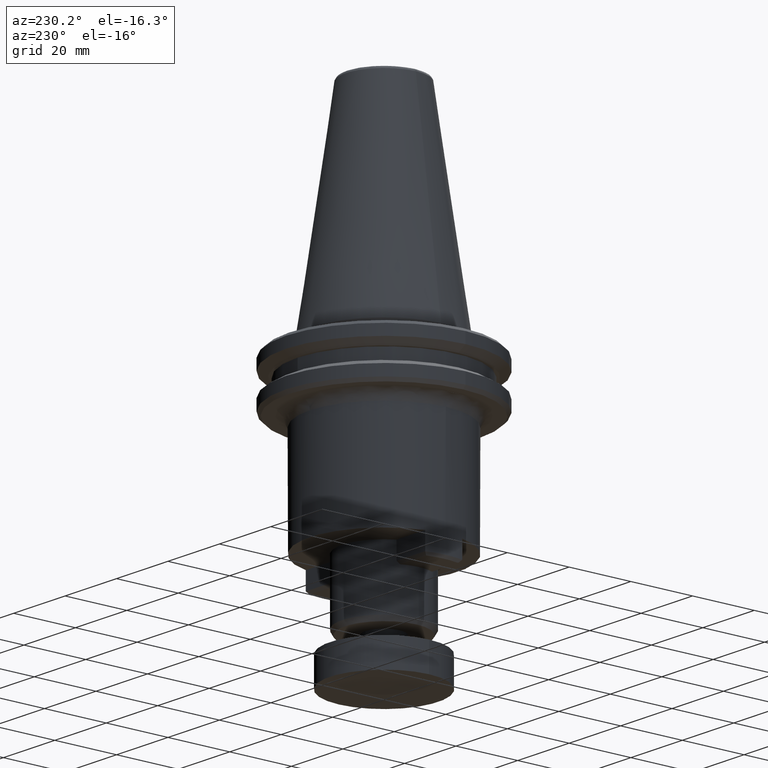
[diagram: clean part render]
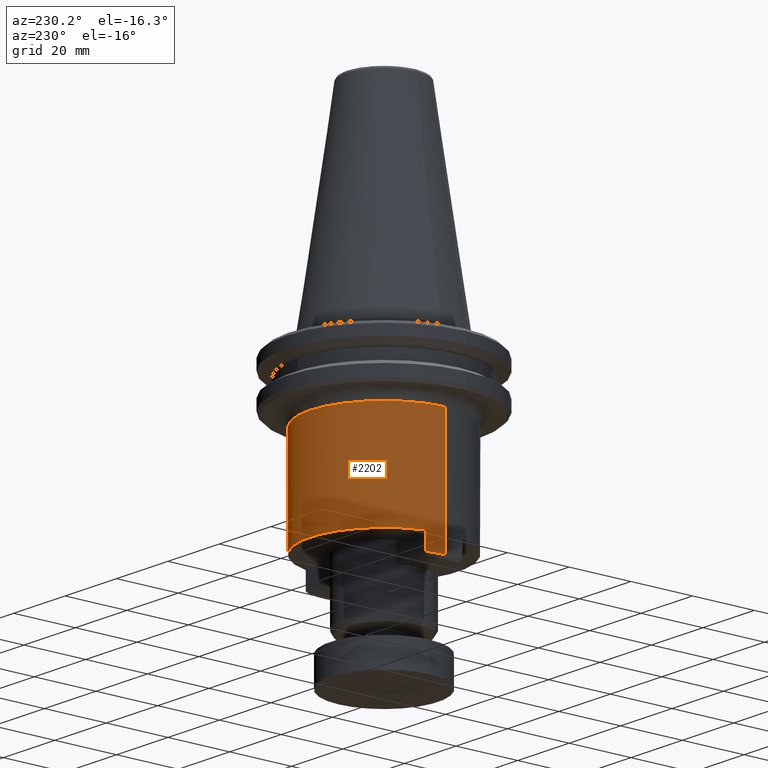
[diagram: same view with one face highlighted and labeled with its STEP entity id]
A machine part, auxiliary view. The second image highlights one B-rep face of the part: STEP entity #2202.
In plain terms, the highlighted cylindrical surface (partial cylindrical patch) has radius 24 mm, axis along (0, -0, 1).
Its self-contained STEP definition (entity closure, byte-faithful):
#18 = CARTESIAN_POINT ( 'NONE',  ( -23.23790007687735600, 5.999999999883237400, -60.49999999978078300 ) ) ;
#36 = EDGE_CURVE ( 'NONE', #1815, #1406, #345, .T. ) ;
#66 = DIRECTION ( 'NONE',  ( 0.0000000000000000000, -0.0000000000000000000, 1.000000000000000000 ) ) ;
#110 = VECTOR ( 'NONE', #1584, 1000.000000000000000 ) ;
#114 = CIRCLE ( 'NONE', #1186, 24.00000000006866000 ) ;
#115 = DIRECTION ( 'NONE',  ( 0.0000000000000000000, -0.0000000000000000000, 1.000000000000000000 ) ) ;
#141 = LINE ( 'NONE', #2169, #110 ) ;
#165 = CARTESIAN_POINT ( 'NONE',  ( -24.00000000088071800, 2.939152317825839400E-015, -22.09999999293517800 ) ) ;
#237 = EDGE_CURVE ( 'NONE', #967, #760, #249, .T. ) ;
#249 = CIRCLE ( 'NONE', #289, 24.00000000000000000 ) ;
#256 = AXIS2_PLACEMENT_3D ( 'NONE', #2162, #1044, #2319 ) ;
#257 = CARTESIAN_POINT ( 'NONE',  ( 0.0000000000000000000, 0.0000000000000000000, -60.50000000024832800 ) ) ;
#267 = DIRECTION ( 'NONE',  ( -0.0000000000000000000, 0.0000000000000000000, -1.000000000000000000 ) ) ;
#289 = AXIS2_PLACEMENT_3D ( 'NONE', #257, #297, #837 ) ;
#294 = CARTESIAN_POINT ( 'NONE',  ( -8.120552841273109800E-010, 6.421997349185742000E-015, -22.09999999293517800 ) ) ;
#297 = DIRECTION ( 'NONE',  ( 0.0000000000000000000, 0.0000000000000000000, 1.000000000000000000 ) ) ;
#344 = CARTESIAN_POINT ( 'NONE',  ( -24.00000000000000000, 2.939152317953647900E-015, -60.50000000024832800 ) ) ;
#345 = CIRCLE ( 'NONE', #2147, 24.00000000006866000 ) ;
#378 = ORIENTED_EDGE ( 'NONE', *, *, #237, .T. ) ;
#402 = AXIS2_PLACEMENT_3D ( 'NONE', #1637, #419, #1824 ) ;
#419 = DIRECTION ( 'NONE',  ( -0.0000000000000000000, -0.0000000000000000000, 1.000000000000000000 ) ) ;
#455 = CARTESIAN_POINT ( 'NONE',  ( 0.0000000000000000000, 0.0000000000000000000, -44.00000000000000000 ) ) ;
#470 = EDGE_CURVE ( 'NONE', #760, #866, #141, .T. ) ;
#473 = EDGE_CURVE ( 'NONE', #866, #1815, #114, .T. ) ;
#503 = ORIENTED_EDGE ( 'NONE', *, *, #36, .T. ) ;
#546 = DIRECTION ( 'NONE',  ( 0.0000000000000000000, 0.0000000000000000000, 1.000000000000000000 ) ) ;
#554 = CARTESIAN_POINT ( 'NONE',  ( 24.00000000000000000, 0.0000000000000000000, -44.00000000000000000 ) ) ;
#600 = VERTEX_POINT ( 'NONE', #1414 ) ;
#642 = CYLINDRICAL_SURFACE ( 'NONE', #1817, 24.00000000000000000 ) ;
#667 = ORIENTED_EDGE ( 'NONE', *, *, #2289, .T. ) ;
#760 = VERTEX_POINT ( 'NONE', #344 ) ;
#774 = EDGE_CURVE ( 'NONE', #830, #1406, #915, .T. ) ;
#830 = VERTEX_POINT ( 'NONE', #1488 ) ;
#837 = DIRECTION ( 'NONE',  ( 0.0000000000000000000, 1.000000000000000000, 0.0000000000000000000 ) ) ;
#855 = CIRCLE ( 'NONE', #256, 24.00000000000000000 ) ;
#866 = VERTEX_POINT ( 'NONE', #165 ) ;
#908 = DIRECTION ( 'NONE',  ( -1.000000000000000000, 0.0000000000000000000, 0.0000000000000000000 ) ) ;
#915 = LINE ( 'NONE', #554, #1924 ) ;
#956 = LINE ( 'NONE', #1909, #977 ) ;
#967 = VERTEX_POINT ( 'NONE', #18 ) ;
#977 = VECTOR ( 'NONE', #2234, 1000.000000000000000 ) ;
#989 = EDGE_CURVE ( 'NONE', #1597, #1615, #2326, .T. ) ;
#1001 = CARTESIAN_POINT ( 'NONE',  ( -23.23790007724068100, 6.000000000007398500, -54.99999999749999800 ) ) ;
#1044 = DIRECTION ( 'NONE',  ( 0.0000000000000000000, 0.0000000000000000000, 1.000000000000000000 ) ) ;
#1108 = ORIENTED_EDGE ( 'NONE', *, *, #473, .T. ) ;
#1186 = AXIS2_PLACEMENT_3D ( 'NONE', #294, #267, #908 ) ;
#1257 = ORIENTED_EDGE ( 'NONE', *, *, #1778, .T. ) ;
#1263 = DIRECTION ( 'NONE',  ( 1.000000000000000000, 0.0000000000000000000, 0.0000000000000000000 ) ) ;
#1265 = EDGE_LOOP ( 'NONE', ( #378, #1705, #1108, #503, #1866, #1257, #667, #1961, #1409 ) ) ;
#1349 = DIRECTION ( 'NONE',  ( -1.000000000000000000, 0.0000000000000000000, 0.0000000000000000000 ) ) ;
#1406 = VERTEX_POINT ( 'NONE', #1910 ) ;
#1409 = ORIENTED_EDGE ( 'NONE', *, *, #2006, .T. ) ;
#1414 = CARTESIAN_POINT ( 'NONE',  ( 23.23790007700640100, 5.999999999908171200, -60.50000000025350000 ) ) ;
#1423 = LINE ( 'NONE', #1916, #2374 ) ;
#1456 = FACE_OUTER_BOUND ( 'NONE', #1265, .T. ) ;
#1488 = CARTESIAN_POINT ( 'NONE',  ( 24.00000000000000000, 0.0000000000000000000, -60.50000000000000700 ) ) ;
#1584 = DIRECTION ( 'NONE',  ( 0.0000000000000000000, -0.0000000000000000000, 1.000000000000000000 ) ) ;
#1597 = VERTEX_POINT ( 'NONE', #2428 ) ;
#1615 = VERTEX_POINT ( 'NONE', #1001 ) ;
#1637 = CARTESIAN_POINT ( 'NONE',  ( 0.0000000000000000000, 0.0000000000000000000, -54.99999999749999100 ) ) ;
#1705 = ORIENTED_EDGE ( 'NONE', *, *, #470, .T. ) ;
#1778 = EDGE_CURVE ( 'NONE', #830, #600, #855, .T. ) ;
#1784 = CARTESIAN_POINT ( 'NONE',  ( -8.120552841273109800E-010, 6.421997349185742000E-015, -22.09999999293517800 ) ) ;
#1799 = DIRECTION ( 'NONE',  ( -0.0000000000000000000, 0.0000000000000000000, -1.000000000000000000 ) ) ;
#1815 = VERTEX_POINT ( 'NONE', #1988 ) ;
#1817 = AXIS2_PLACEMENT_3D ( 'NONE', #455, #66, #1263 ) ;
#1824 = DIRECTION ( 'NONE',  ( 1.000000000000000000, 0.0000000000000000000, 0.0000000000000000000 ) ) ;
#1866 = ORIENTED_EDGE ( 'NONE', *, *, #774, .F. ) ;
#1909 = CARTESIAN_POINT ( 'NONE',  ( -23.23790007723686200, 6.000000000029592300, -60.50000000000000000 ) ) ;
#1910 = CARTESIAN_POINT ( 'NONE',  ( 23.99999999925660500, 9.946041493200114400E-026, -22.09999999293517800 ) ) ;
#1916 = CARTESIAN_POINT ( 'NONE',  ( 23.23790007725919400, 5.999999999943097100, -60.50000000000000000 ) ) ;
#1924 = VECTOR ( 'NONE', #115, 1000.000000000000000 ) ;
#1961 = ORIENTED_EDGE ( 'NONE', *, *, #989, .T. ) ;
#1988 = CARTESIAN_POINT ( 'NONE',  ( 1.160698381505987900E-021, 24.00000000006866300, -22.09999999293517800 ) ) ;
#2006 = EDGE_CURVE ( 'NONE', #1615, #967, #956, .T. ) ;
#2147 = AXIS2_PLACEMENT_3D ( 'NONE', #1784, #1799, #1349 ) ;
#2162 = CARTESIAN_POINT ( 'NONE',  ( 0.0000000000000000000, 0.0000000000000000000, -60.50000000000000700 ) ) ;
#2169 = CARTESIAN_POINT ( 'NONE',  ( -24.00000000000000000, 2.939152317953647900E-015, -44.00000000000000000 ) ) ;
#2202 = ADVANCED_FACE ( 'NONE', ( #1456 ), #642, .T. ) ;
#2234 = DIRECTION ( 'NONE',  ( -0.0000000000000000000, -0.0000000000000000000, -1.000000000000000000 ) ) ;
#2289 = EDGE_CURVE ( 'NONE', #600, #1597, #1423, .T. ) ;
#2319 = DIRECTION ( 'NONE',  ( 0.0000000000000000000, 1.000000000000000000, 0.0000000000000000000 ) ) ;
#2326 = CIRCLE ( 'NONE', #402, 24.00000000000000000 ) ;
#2374 = VECTOR ( 'NONE', #546, 1000.000000000000000 ) ;
#2428 = CARTESIAN_POINT ( 'NONE',  ( 23.23790007728624800, 5.999999999838321300, -54.99999999749999100 ) ) ;